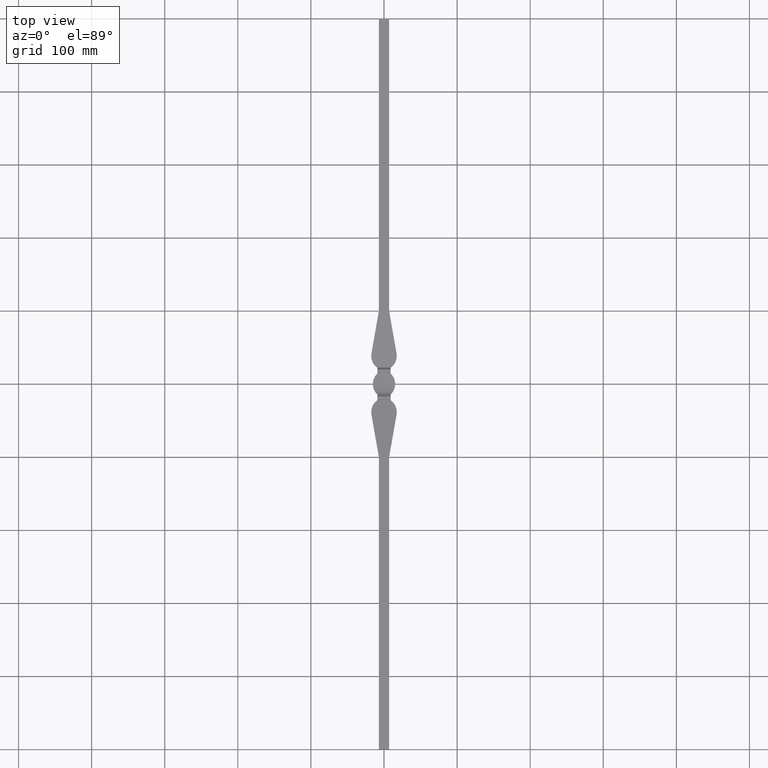
[diagram: clean part render]
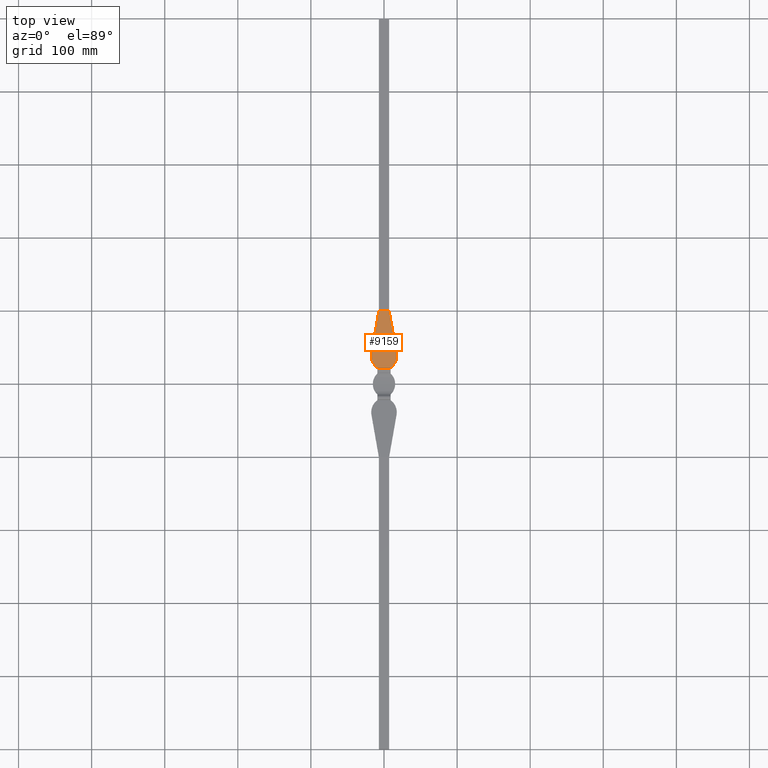
[diagram: same view with one face highlighted and labeled with its STEP entity id]
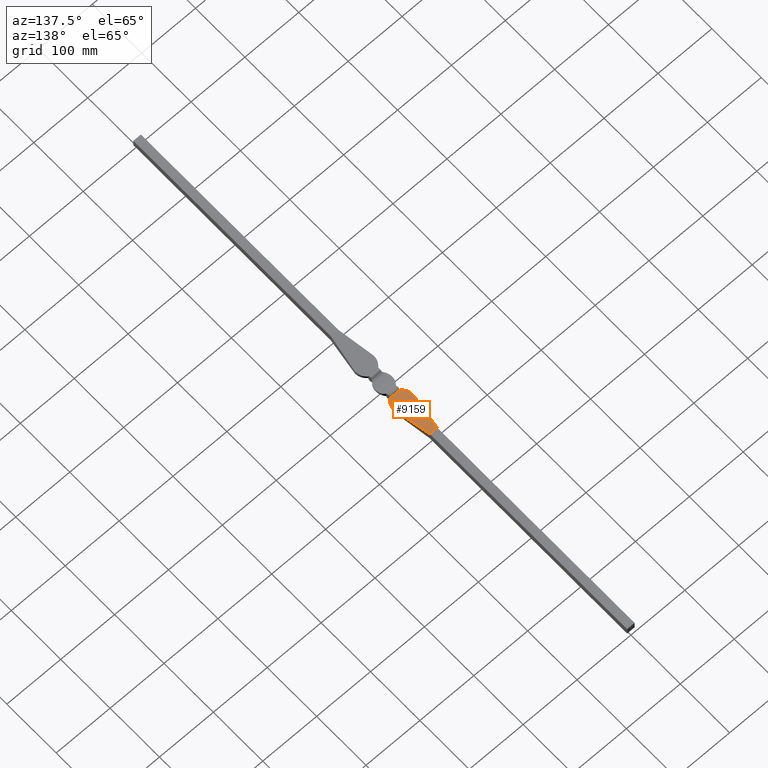
[diagram: same view with one face highlighted and labeled with its STEP entity id]
A machine part, top view. The second image highlights one B-rep face of the part: STEP entity #9159.
A second angle (auxiliary view) of the same face is appended — the face is thin or edge-on in the first view.
In plain terms, the highlighted planar face has unit normal (0, 0.0608, -0.9982).
Its self-contained STEP definition (entity closure, byte-faithful):
#306 = LINE ( 'NONE', #2683, #7383 ) ;
#619 = CARTESIAN_POINT ( 'NONE',  ( 15.53985880112379725, 26.66008408080875469, 2.533787171587712717 ) ) ;
#1140 = AXIS2_PLACEMENT_3D ( 'NONE', #9752, #8881, #10685 ) ;
#1732 = VECTOR ( 'NONE', #7185, 1000.000000000000114 ) ;
#1967 = EDGE_CURVE ( 'NONE', #4447, #7077, #306, .T. ) ;
#2004 = VECTOR ( 'NONE', #5894, 1000.000000000000000 ) ;
#2028 = CARTESIAN_POINT ( 'NONE',  ( -17.19423237648115332, 42.00000000000000000, 3.467948717948718507 ) ) ;
#2132 = CARTESIAN_POINT ( 'NONE',  ( -15.53985880112379725, 26.66008408080875469, 2.533787171587712717 ) ) ;
#2683 = CARTESIAN_POINT ( 'NONE',  ( -7.000000000000000888, 100.0000000000000000, 7.000000000000000000 ) ) ;
#2782 = CARTESIAN_POINT ( 'NONE',  ( -7.000000000000000888, 100.0000000000000000, 6.999999999999999112 ) ) ;
#2865 = VERTEX_POINT ( 'NONE', #3459 ) ;
#3032 = ORIENTED_EDGE ( 'NONE', *, *, #11054, .F. ) ;
#3185 = ORIENTED_EDGE ( 'NONE', *, *, #1967, .F. ) ;
#3417 = VERTEX_POINT ( 'NONE', #4175 ) ;
#3446 = CARTESIAN_POINT ( 'NONE',  ( -8.999999999999998224, 22.00000000000000000, 2.250000000000000000 ) ) ;
#3459 = CARTESIAN_POINT ( 'NONE',  ( 8.999999999999998224, 22.00000000000000000, 2.250000000000000000 ) ) ;
#3473 = ORIENTED_EDGE ( 'NONE', *, *, #4792, .T. ) ;
#3534 = EDGE_CURVE ( 'NONE', #2865, #8581, #7597, .T. ) ;
#3849 = CARTESIAN_POINT ( 'NONE',  ( -8.999999999999998224, 22.00000000000000000, 2.250000000000000000 ) ) ;
#4050 = CARTESIAN_POINT ( 'NONE',  ( -17.50000000000000355, 22.00000000000000000, 2.250000000000000000 ) ) ;
#4175 = CARTESIAN_POINT ( 'NONE',  ( -17.19423237648115332, 42.00000000000000000, 3.467948717948718507 ) ) ;
#4289 = CARTESIAN_POINT ( 'NONE',  ( 7.000000000000000888, 100.0000000000000000, 6.999999999999999112 ) ) ;
#4447 = VERTEX_POINT ( 'NONE', #2782 ) ;
#4762 = LINE ( 'NONE', #8047, #1732 ) ;
#4792 = EDGE_CURVE ( 'NONE', #5597, #2865, #10648, .T. ) ;
#4858 = CARTESIAN_POINT ( 'NONE',  ( -18.58435472468469740, 34.09091050525607614, 2.986305447435466665 ) ) ;
#5561 = EDGE_LOOP ( 'NONE', ( #9612, #3473, #11356, #10824, #3185, #3032 ) ) ;
#5597 = VERTEX_POINT ( 'NONE', #3446 ) ;
#5894 = DIRECTION ( 'NONE',  ( 1.000000000000000000, -0.000000000000000000, -0.000000000000000000 ) ) ;
#6117 =( BOUNDED_CURVE ( )  B_SPLINE_CURVE ( 3, ( #3849, #2132, #4858, #2028 ),
 .UNSPECIFIED., .F., .T. ) 
 B_SPLINE_CURVE_WITH_KNOTS ( ( 4, 4 ),
 ( 0.6191101395289017040, 1.744781863033761926 ),
 .UNSPECIFIED. ) 
 CURVE ( )  GEOMETRIC_REPRESENTATION_ITEM ( )  RATIONAL_B_SPLINE_CURVE ( ( 1.000000000000000000, 0.8971635570349776323, 0.8971635570349776323, 1.000000000000000000 ) ) 
 REPRESENTATION_ITEM ( '' )  );
#6256 = VECTOR ( 'NONE', #8868, 1000.000000000000114 ) ;
#7077 = VERTEX_POINT ( 'NONE', #4289 ) ;
#7134 = CARTESIAN_POINT ( 'NONE',  ( -7.000000000000000888, 100.0000000000000000, 6.999999999999999112 ) ) ;
#7159 = CARTESIAN_POINT ( 'NONE',  ( 17.19423237648115332, 42.00000000000000000, 3.467948717948718507 ) ) ;
#7185 = DIRECTION ( 'NONE',  ( -0.1727985479923806467, 0.9831358962034556503, 0.05987045521751810373 ) ) ;
#7383 = VECTOR ( 'NONE', #9958, 1000.000000000000000 ) ;
#7431 = EDGE_CURVE ( 'NONE', #5597, #3417, #6117, .T. ) ;
#7597 =( BOUNDED_CURVE ( )  B_SPLINE_CURVE ( 3, ( #10652, #619, #9757, #7966 ),
 .UNSPECIFIED., .F., .T. ) 
 B_SPLINE_CURVE_WITH_KNOTS ( ( 4, 4 ),
 ( 0.6191101395289017040, 1.744781863033761926 ),
 .UNSPECIFIED. ) 
 CURVE ( )  GEOMETRIC_REPRESENTATION_ITEM ( )  RATIONAL_B_SPLINE_CURVE ( ( 1.000000000000000000, 0.8971635570349776323, 0.8971635570349776323, 1.000000000000000000 ) ) 
 REPRESENTATION_ITEM ( '' )  );
#7966 = CARTESIAN_POINT ( 'NONE',  ( 17.19423237648115332, 42.00000000000000000, 3.467948717948718507 ) ) ;
#8047 = CARTESIAN_POINT ( 'NONE',  ( 7.000000000000000888, 100.0000000000000000, 6.999999999999999112 ) ) ;
#8426 = LINE ( 'NONE', #7134, #6256 ) ;
#8581 = VERTEX_POINT ( 'NONE', #7159 ) ;
#8868 = DIRECTION ( 'NONE',  ( 0.1727985479923806467, 0.9831358962034556503, 0.05987045521751810373 ) ) ;
#8881 = DIRECTION ( 'NONE',  ( 0.000000000000000000, 0.06078482999941198228, -0.9981508926219234690 ) ) ;
#9159 = ADVANCED_FACE ( 'NONE', ( #11364 ), #11476, .F. ) ;
#9216 = EDGE_CURVE ( 'NONE', #8581, #7077, #4762, .T. ) ;
#9612 = ORIENTED_EDGE ( 'NONE', *, *, #7431, .F. ) ;
#9752 = CARTESIAN_POINT ( 'NONE',  ( -17.50000000000000355, 100.0000000000000000, 6.999999999999999112 ) ) ;
#9757 = CARTESIAN_POINT ( 'NONE',  ( 18.58435472468469740, 34.09091050525607614, 2.986305447435466665 ) ) ;
#9958 = DIRECTION ( 'NONE',  ( 1.000000000000000000, 0.000000000000000000, 0.000000000000000000 ) ) ;
#10648 = LINE ( 'NONE', #4050, #2004 ) ;
#10652 = CARTESIAN_POINT ( 'NONE',  ( 8.999999999999998224, 22.00000000000000000, 2.250000000000000000 ) ) ;
#10685 = DIRECTION ( 'NONE',  ( 0.000000000000000000, 0.9981508926219234690, 0.06078482999941198228 ) ) ;
#10824 = ORIENTED_EDGE ( 'NONE', *, *, #9216, .T. ) ;
#11054 = EDGE_CURVE ( 'NONE', #3417, #4447, #8426, .T. ) ;
#11356 = ORIENTED_EDGE ( 'NONE', *, *, #3534, .T. ) ;
#11364 = FACE_OUTER_BOUND ( 'NONE', #5561, .T. ) ;
#11476 = PLANE ( 'NONE',  #1140 ) ;